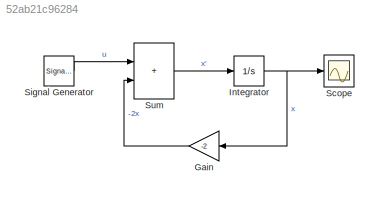
MODEL slx_52ab21c96284
KIND model
CONFIG AbsTol = auto
CONFIG EnableMultiTasking = off
CONFIG FixedStep = auto
CONFIG MaxStep = auto
CONFIG MinStep = auto
CONFIG RelTol = 1e-3
CONFIG SampleTimeConstraint = Unconstrained
CONFIG SolverName = VariableStepAuto
CONFIG StartTime = 0.0
CONFIG StopTime = 10.0
BLOCK [Gain] Gain
  Gain = -2
BLOCK [Integrator] Integrator
BLOCK [Scope] Scope
  Floating = off
  NumInputPorts = 1
  ScopeSpecificationString = Simulink.scopes.TimeScopeBlockCfg('CurrentConfiguration', extmgr.ConfigurationSet(extmgr.Configuration('Core','General UI',true),extmgr.Configuration('Core','Source UI',true),extmgr.Configuration('Sources','WiredSimulink',true),extmgr.Configuration('Visuals','Time Domain',true),extmgr.Configuration('Tools','Plot Navigation',true),extmgr.Configuration('Tools','Measurements',true)),'Version','2024b'...<+1ch>
BLOCK [SignalGenerator] Signal Generator
  Units = rad/sec
  WaveForm = square
BLOCK [Sum] Sum
  IconShape = rectangular
  Inputs = |++
LINE Gain:1 -> Sum:2
NET Integrator:1 -> Gain:1, Scope:1
LINE Signal Generator:1 -> Sum:1
LINE Sum:1 -> Integrator:1
note: NET lines group one-source signal fan-out (src -> all destinations, sorted); 1:1 wires keep LINE
